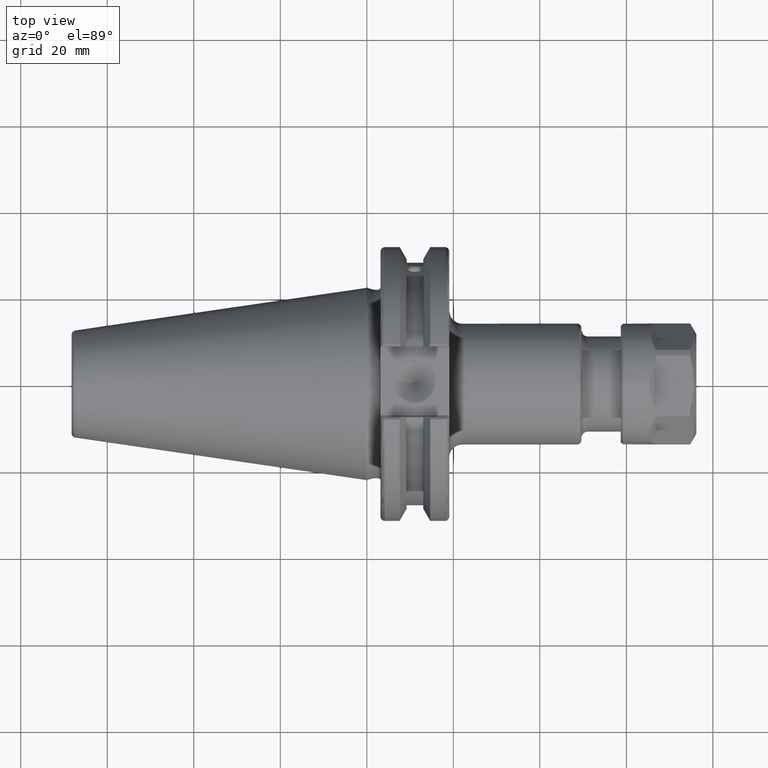
[diagram: clean part render]
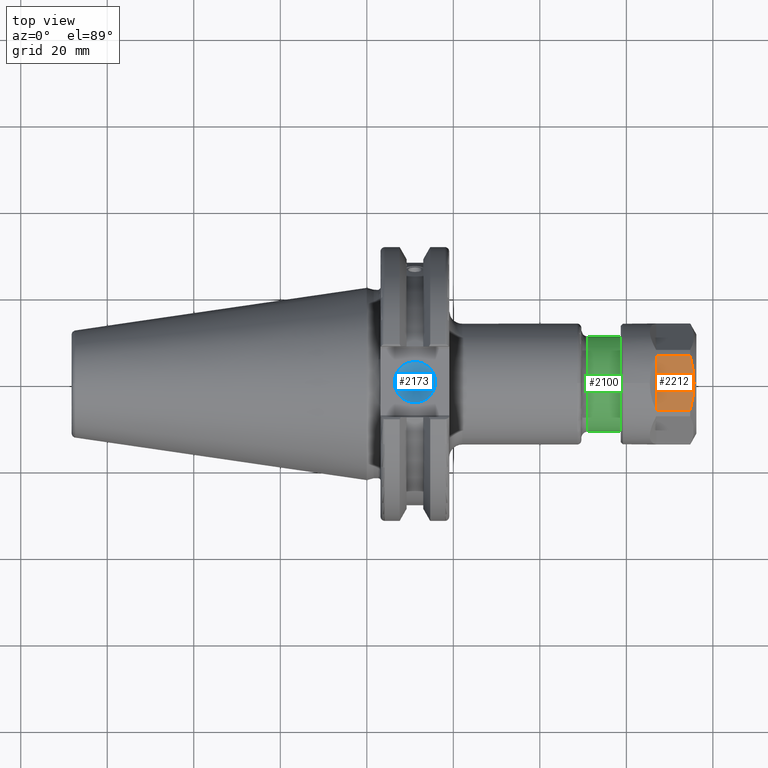
[diagram: same view with three faces highlighted in distinct colors, each labeled with its STEP entity id]
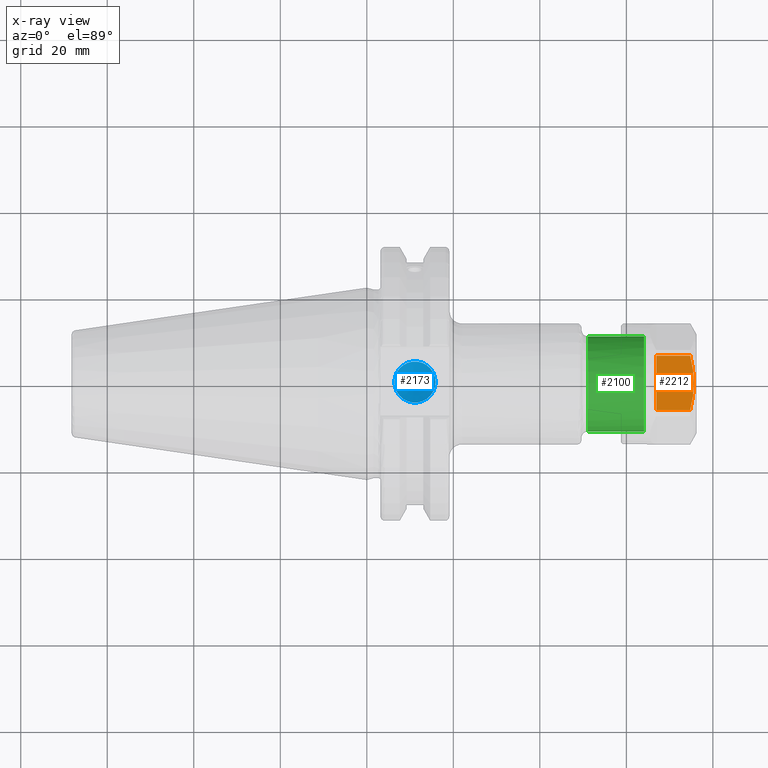
[diagram: x-ray of the same camera — body ghosted, the three highlighted faces saturated]
A machine part, top view with three faces highlighted in distinct colors.
The next image is the same camera in x-ray (body ghosted, the three faces saturated) — at least one of them is partly hidden behind the body in this view.
Their STEP definitions:

[orange] entity #2212 — the highlighted planar face has unit normal (0, 0, -1).
#81=(
BOUNDED_CURVE()
B_SPLINE_CURVE(2,(#4090,#4091,#4092),.UNSPECIFIED.,.F.,.F.)
B_SPLINE_CURVE_WITH_KNOTS((3,3),(1.76676018698455,2.8268759330768),
 .UNSPECIFIED.)
CURVE()
GEOMETRIC_REPRESENTATION_ITEM()
RATIONAL_B_SPLINE_CURVE((1.5788725780361,1.67360493271826,1.67360493271826))
REPRESENTATION_ITEM('')
);
#87=(
BOUNDED_CURVE()
B_SPLINE_CURVE(2,(#4125,#4126,#4127),.UNSPECIFIED.,.F.,.F.)
B_SPLINE_CURVE_WITH_KNOTS((3,3),(2.8268759330768,3.88699167916905),
 .UNSPECIFIED.)
CURVE()
GEOMETRIC_REPRESENTATION_ITEM()
RATIONAL_B_SPLINE_CURVE((1.67360493271826,1.67360493271826,1.5788725780361))
REPRESENTATION_ITEM('')
);
#223=PLANE('',#2544);
#382=FACE_OUTER_BOUND('',#527,.T.);
#527=EDGE_LOOP('',(#2047,#2048,#2049,#2050,#2051));
#655=LINE('',#4149,#787);
#657=LINE('',#4157,#789);
#663=LINE('',#4171,#795);
#787=VECTOR('',#3160,7.856624327026);
#789=VECTOR('',#3168,7.856624327026);
#795=VECTOR('',#3182,12.60952021292);
#1093=VERTEX_POINT('',#4088);
#1094=VERTEX_POINT('',#4089);
#1105=VERTEX_POINT('',#4123);
#1112=VERTEX_POINT('',#4148);
#1115=VERTEX_POINT('',#4155);
#1397=EDGE_CURVE('',#1093,#1094,#81,.T.);
#1409=EDGE_CURVE('',#1094,#1105,#87,.T.);
#1421=EDGE_CURVE('',#1112,#1093,#655,.T.);
#1426=EDGE_CURVE('',#1115,#1105,#657,.T.);
#1434=EDGE_CURVE('',#1112,#1115,#663,.T.);
#2047=ORIENTED_EDGE('',*,*,#1434,.F.);
#2048=ORIENTED_EDGE('',*,*,#1421,.T.);
#2049=ORIENTED_EDGE('',*,*,#1397,.T.);
#2050=ORIENTED_EDGE('',*,*,#1409,.T.);
#2051=ORIENTED_EDGE('',*,*,#1426,.F.);
#2212=ADVANCED_FACE('',(#382),#223,.F.);
#2544=AXIS2_PLACEMENT_3D('',#4172,#3183,#3184);
#3160=DIRECTION('',(1.,0.,0.));
#3168=DIRECTION('',(1.,0.,0.));
#3182=DIRECTION('',(0.,1.,0.));
#3183=DIRECTION('center_axis',(0.,0.,-1.));
#3184=DIRECTION('ref_axis',(0.,1.,0.));
#4088=CARTESIAN_POINT('',(7.306624327026,-6.304760106459,12.5));
#4089=CARTESIAN_POINT('',(8.17264973080863,7.65404249467096E-16,12.5));
#4090=CARTESIAN_POINT('Ctrl Pts',(7.30662432702432,-6.30476010645877,12.5));
#4091=CARTESIAN_POINT('Ctrl Pts',(8.17264973080863,-2.97394344644284,12.5));
#4092=CARTESIAN_POINT('Ctrl Pts',(8.17264973080863,0.,12.5));
#4123=CARTESIAN_POINT('',(7.306624327026,6.304760106459,12.5));
#4125=CARTESIAN_POINT('Ctrl Pts',(8.17264973080863,0.,12.5));
#4126=CARTESIAN_POINT('Ctrl Pts',(8.17264973080863,2.97394344644284,12.5));
#4127=CARTESIAN_POINT('Ctrl Pts',(7.30662432702432,6.30476010645876,12.5));
#4148=CARTESIAN_POINT('',(-0.55,-6.304760106459,12.5));
#4149=CARTESIAN_POINT('',(-0.55,-6.304760106459,12.5));
#4155=CARTESIAN_POINT('',(-0.55,6.304760106459,12.5));
#4157=CARTESIAN_POINT('',(-0.55,6.304760106459,12.5));
#4171=CARTESIAN_POINT('',(-0.55,-6.304760106459,12.5));
#4172=CARTESIAN_POINT('Origin',(8.75,-10.,12.5));

[blue] entity #2173 — the highlighted conical surface has half-angle 59 deg.
#343=FACE_OUTER_BOUND('',#480,.T.);
#480=EDGE_LOOP('',(#1852,#1853,#1854));
#626=LINE('',#3975,#758);
#758=VECTOR('',#2979,2.38125);
#871=CIRCLE('',#2460,4.7625);
#1063=VERTEX_POINT('',#3972);
#1064=VERTEX_POINT('',#3974);
#1345=EDGE_CURVE('',#1063,#1063,#871,.T.);
#1346=EDGE_CURVE('',#1063,#1064,#626,.T.);
#1852=ORIENTED_EDGE('',*,*,#1345,.T.);
#1853=ORIENTED_EDGE('',*,*,#1346,.T.);
#1854=ORIENTED_EDGE('',*,*,#1346,.F.);
#2089=CONICAL_SURFACE('',#2459,2.38125,1.02974425867665);
#2173=ADVANCED_FACE('',(#343),#2089,.F.);
#2459=AXIS2_PLACEMENT_3D('',#3971,#2975,#2976);
#2460=AXIS2_PLACEMENT_3D('',#3973,#2977,#2978);
#2975=DIRECTION('center_axis',(0.,0.,1.));
#2976=DIRECTION('ref_axis',(1.,0.,0.));
#2977=DIRECTION('center_axis',(0.,0.,1.));
#2978=DIRECTION('ref_axis',(1.,0.,0.));
#2979=DIRECTION('',(0.857167300702112,1.04972719113862E-16,-0.515038074910054));
#3971=CARTESIAN_POINT('Origin',(11.127,0.,23.1692006509406));
#3972=CARTESIAN_POINT('',(6.3645,-5.83238038093927E-16,24.6));
#3973=CARTESIAN_POINT('Origin',(11.127,0.,24.6));
#3974=CARTESIAN_POINT('',(11.127,0.,21.7384013018812));
#3975=CARTESIAN_POINT('',(8.74575,-2.91619019046964E-16,23.1692006509406));

[green] entity #2100 — the highlighted cylindrical surface (bore or boss wall) has radius 11 mm, axis along (1, 0, 0).
#232=CYLINDRICAL_SURFACE('',#2301,11.);
#270=FACE_OUTER_BOUND('',#393,.T.);
#393=EDGE_LOOP('',(#1447,#1448,#1449,#1450,#1451,#1452));
#538=LINE('',#3228,#670);
#670=VECTOR('',#2573,11.);
#802=CIRCLE('',#2299,11.);
#803=CIRCLE('',#2300,11.);
#804=CIRCLE('',#2302,11.);
#805=CIRCLE('',#2303,11.);
#912=VERTEX_POINT('',#3221);
#913=VERTEX_POINT('',#3223);
#914=VERTEX_POINT('',#3227);
#915=VERTEX_POINT('',#3229);
#1124=EDGE_CURVE('',#912,#913,#802,.T.);
#1125=EDGE_CURVE('',#913,#912,#803,.T.);
#1126=EDGE_CURVE('',#913,#914,#538,.T.);
#1127=EDGE_CURVE('',#915,#914,#804,.T.);
#1128=EDGE_CURVE('',#914,#915,#805,.T.);
#1447=ORIENTED_EDGE('',*,*,#1124,.F.);
#1448=ORIENTED_EDGE('',*,*,#1125,.F.);
#1449=ORIENTED_EDGE('',*,*,#1126,.T.);
#1450=ORIENTED_EDGE('',*,*,#1127,.F.);
#1451=ORIENTED_EDGE('',*,*,#1128,.F.);
#1452=ORIENTED_EDGE('',*,*,#1126,.F.);
#2100=ADVANCED_FACE('',(#270),#232,.T.);
#2299=AXIS2_PLACEMENT_3D('',#3224,#2567,#2568);
#2300=AXIS2_PLACEMENT_3D('',#3225,#2569,#2570);
#2301=AXIS2_PLACEMENT_3D('',#3226,#2571,#2572);
#2302=AXIS2_PLACEMENT_3D('',#3230,#2574,#2575);
#2303=AXIS2_PLACEMENT_3D('',#3231,#2576,#2577);
#2567=DIRECTION('center_axis',(1.,0.,0.));
#2568=DIRECTION('ref_axis',(0.,-1.,0.));
#2569=DIRECTION('center_axis',(1.,0.,0.));
#2570=DIRECTION('ref_axis',(0.,-1.,0.));
#2571=DIRECTION('center_axis',(1.,0.,0.));
#2572=DIRECTION('ref_axis',(0.,1.,0.));
#2573=DIRECTION('',(-1.,0.,0.));
#2574=DIRECTION('center_axis',(-1.,0.,0.));
#2575=DIRECTION('ref_axis',(0.,-1.,1.83697019872103E-16));
#2576=DIRECTION('center_axis',(-1.,0.,0.));
#2577=DIRECTION('ref_axis',(0.,-1.,1.83697019872103E-16));
#3221=CARTESIAN_POINT('',(64.1,11.,1.34711147906209E-15));
#3223=CARTESIAN_POINT('',(64.1,-11.,-1.34711147906209E-15));
#3224=CARTESIAN_POINT('Origin',(64.1,0.,0.));
#3225=CARTESIAN_POINT('Origin',(64.1,0.,0.));
#3226=CARTESIAN_POINT('Origin',(57.6,0.,0.));
#3227=CARTESIAN_POINT('',(51.1,-11.,-1.34711147906209E-15));
#3228=CARTESIAN_POINT('',(57.6,-11.,-1.34711147906209E-15));
#3229=CARTESIAN_POINT('',(51.1,-1.34711147906209E-15,11.));
#3230=CARTESIAN_POINT('Origin',(51.1,0.,0.));
#3231=CARTESIAN_POINT('Origin',(51.1,0.,0.));